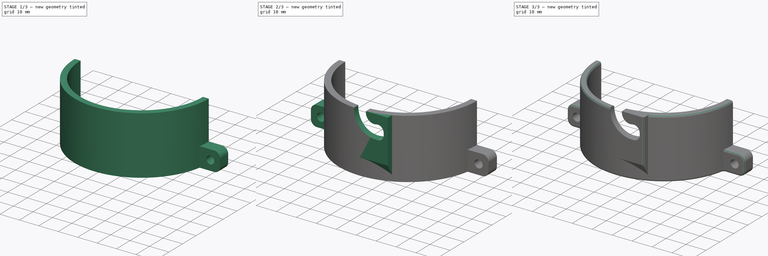
[diagram: build sequence overview — one tinted view per stage of 3, left to right]
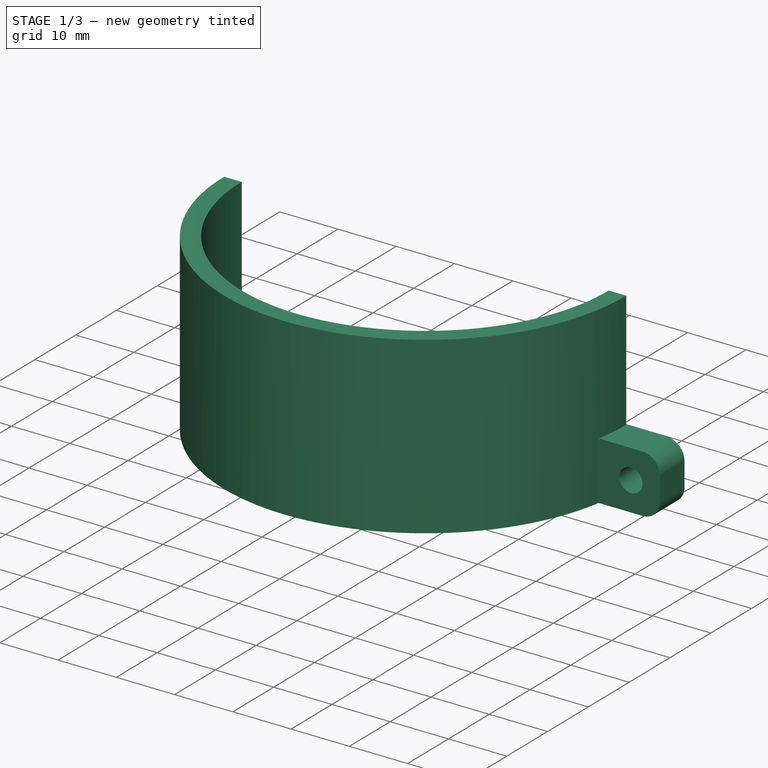
[diagram: stage 1 of 3 — iso view after this stage's code; geometry added in this stage tinted green]
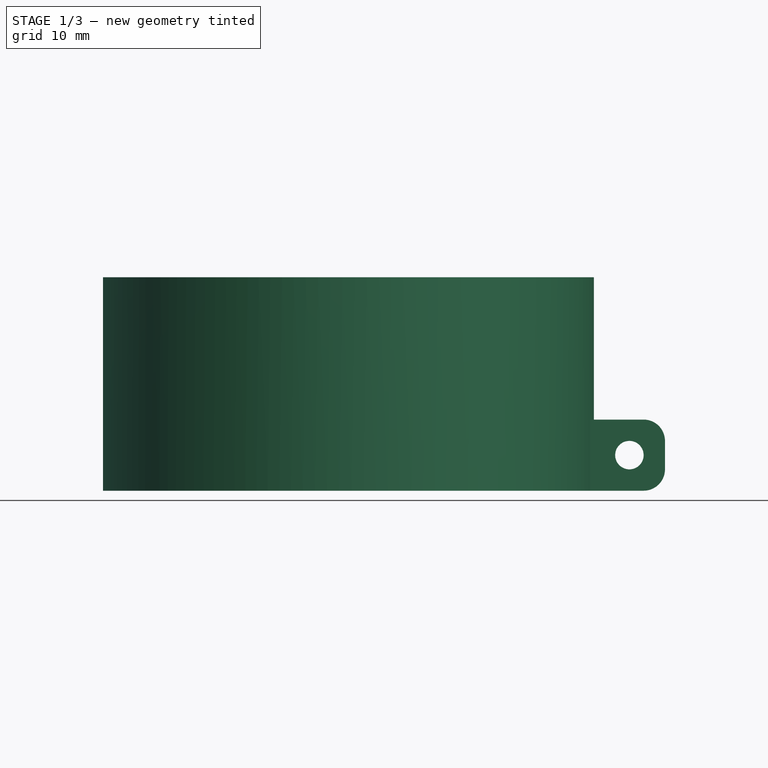
[diagram: stage 1 of 3 — front view after this stage's code; geometry added in this stage tinted green]
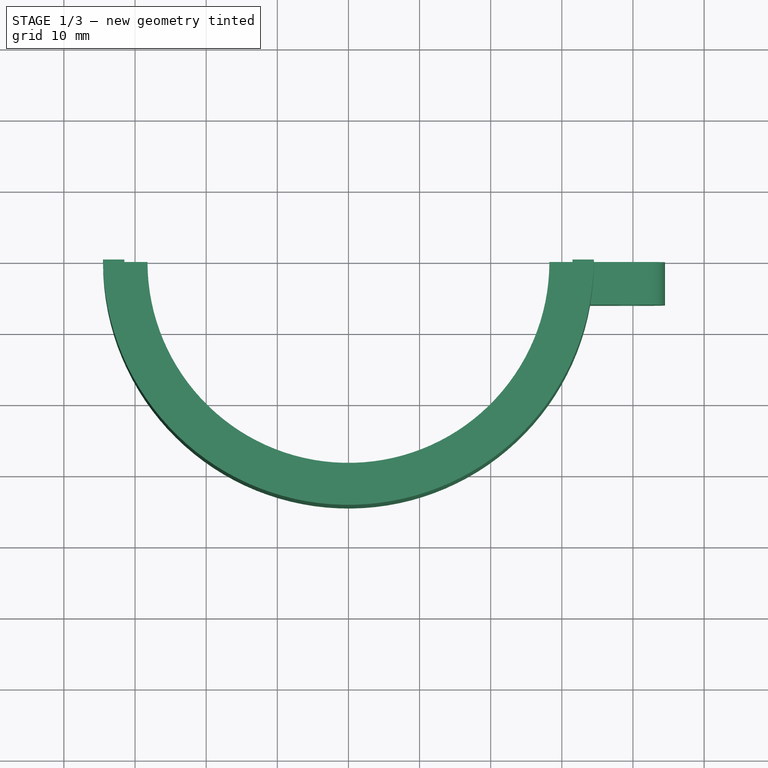
[diagram: stage 1 of 3 — top view after this stage's code; geometry added in this stage tinted green]
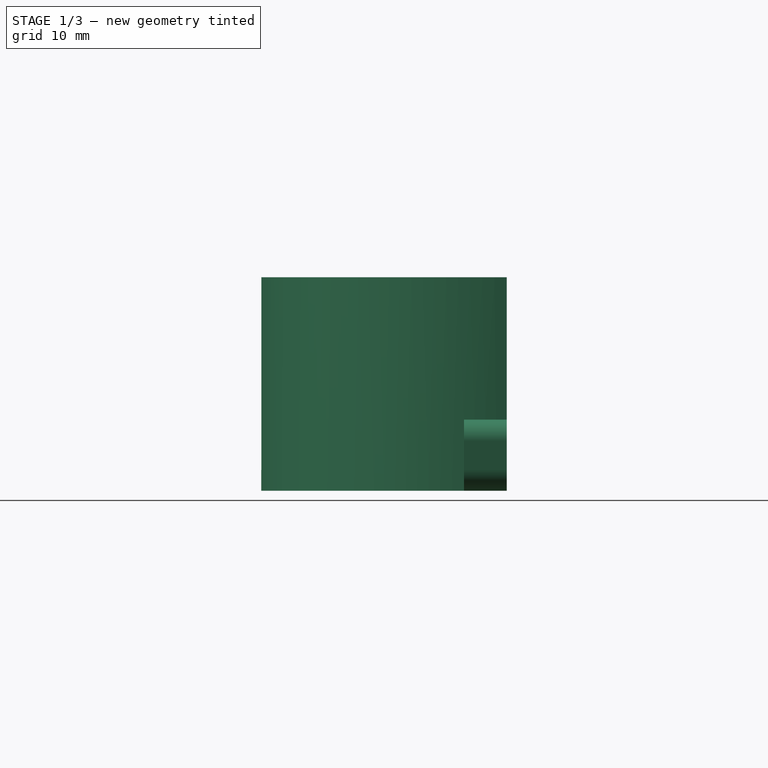
[diagram: stage 1 of 3 — right view after this stage's code; geometry added in this stage tinted green]
FCSTD DOCUMENT  (FreeCAD 0.20R27319 (Git))
Label: Hose Adapter
License: All rights reserved
LicenseURL: http://en.wikipedia.org/wiki/All_rights_reserved
objects: Sketcher::SketchObject×4, PartDesign::Pad×2, PartDesign::Fillet×2, PartDesign::Revolution×1, PartDesign::Mirrored×1, PartDesign::Pocket×1, PartDesign::Body×1
note: 18 computed .brp shape members not serialized (recipe doc carries the construction recipe); baked Part::Feature solids carry a one-line shape summary decoded from their .brp

FEATURE [Sketcher::SketchObject] Sketch
  FullyConstrained = true
  MapMode = 5
  Placement = pos=(0,0,0) rot=(1,0,0;1.5708rad)
  Support = -> [XZ_Plane]
  expr: Constraints[13] = 56.5 / 2
  expr: Constraints[14] = 63 / 2
  sketch-geometry (6):
    g0: LineSegment StartX=28.25 StartY=0 StartZ=0 EndX=28.25 EndY=10 EndZ=0
    g1: LineSegment StartX=28.25 StartY=10 StartZ=0 EndX=31.5 EndY=10 EndZ=0
    g2: LineSegment StartX=31.5 StartY=10 StartZ=0 EndX=31.5 EndY=30 EndZ=0
    g3: LineSegment StartX=31.5 StartY=30 StartZ=0 EndX=34.5 EndY=30 EndZ=0
    g4: LineSegment StartX=34.5 StartY=30 StartZ=0 EndX=34.5 EndY=0 EndZ=0
    g5: LineSegment StartX=34.5 StartY=0 StartZ=0 EndX=28.25 EndY=0 EndZ=0
  constraints (19):
    c: PointOnObject(g0,g-1)
    c: Vertical(g0)
    c: Coincident(g0,g1)
    c: Coincident(g1,g2)
    c: Vertical(g2)
    c: Coincident(g2,g3)
    c: Horizontal(g3)
    c: Coincident(g3,g4)
    c: Vertical(g4)
    c: Coincident(g4,g5)
    c: Coincident(g5,g0)
    c: Horizontal(g5)
    c: Horizontal(g1)
    c: DistanceX(g-1,g0) = 28.25
    c: DistanceX(g-1,g1) = 31.5
    c: DistanceY(g4,g4) = 30
    c: DistanceY(g0,g0) = 10
    c: DistanceX(g3,g3) = 3
    c: DistanceX(g1,g1) = 3.25
FEATURE [PartDesign::Revolution] Revolution
  Angle = 180
  Axis = (0,2e-16,1)
  Base = (0,0,0)
  Placement = pos=(0,0,0) rot=(1,0,0;1.5708rad)
  Profile = -> Sketch
  ReferenceAxis = -> Sketch [V_Axis]
  Reversed = true
FEATURE [Sketcher::SketchObject] Sketch001
  ExternalGeometry = -> [Sketch]
  FullyConstrained = false
  MapMode = 5
  Placement = pos=(0,0,0) rot=(1,0,0;1.5708rad)
  Support = -> [XZ_Plane]
  sketch-geometry (9):
    g0: LineSegment StartX=-3 StartY=42.4099 StartZ=0 EndX=-3 EndY=29.4253 EndZ=0
    g1: LineSegment StartX=7.92534 StartY=18.5 StartZ=0 EndX=8.92534 EndY=18.5 EndZ=0
    g2: LineSegment StartX=3 StartY=29.4253 StartZ=0 EndX=3 EndY=42.4099 EndZ=0
    g3: LineSegment StartX=3 StartY=42.4099 StartZ=0 EndX=-3 EndY=42.4099 EndZ=0
    g4: ArcOfCircle CenterX=7.92534 CenterY=29.4253 CenterZ=0 NormalX=0 NormalY=0 NormalZ=1 AngleXU=0 Radius=10.9253 StartAngle=3.14159 EndAngle=4.71239
    g5: ArcOfCircle CenterX=8.92534 CenterY=21.5 CenterZ=0 NormalX=0 NormalY=0 NormalZ=1 AngleXU=0 Radius=3 StartAngle=4.71239 EndAngle=6.28319
    g6: LineSegment StartX=11.9253 StartY=21.5 StartZ=0 EndX=11.9253 EndY=22.5 EndZ=0
    g7: ArcOfCircle CenterX=8.92534 CenterY=22.5 CenterZ=0 NormalX=0 NormalY=0 NormalZ=1 AngleXU=0 Radius=3 StartAngle=3e-16 EndAngle=1.82182
    g8: ArcOfCircle CenterX=7.14942 CenterY=29.4253 CenterZ=0 NormalX=0 NormalY=0 NormalZ=1 AngleXU=0 Radius=4.14942 StartAngle=3.14159 EndAngle=4.96342
  constraints (22):
    c: Vertical(g0)
    c: Horizontal(g1)
    c: Coincident(g2,g3)
    c: Coincident(g3,g0)
    c: Vertical(g2)
    c: Symmetric(g0,g2,g-2)
    c: Tangent(g0,g4) = -1.5708
    c: Tangent(g1,g4) = -1.5708
    c: DistanceX(g3,g3) = 6
    c: DistanceY(g-3,g1) = 8.5
    c: Tangent(g5,g1) = -1.5708
    c: Coincident(g6,g5)
    c: Vertical(g6)
    c: Tangent(g7,g6) = -1.5708
    c: Radius(g5) = 3
    c: DistanceY(g6,g6) = 1
    c: Vertical(g7,g5)
    c: Equal(g5,g7)
    c: Horizontal(g0,g2)
    c: Tangent(g8,g2) = 1.5708
    c: Tangent(g7,g8) = 1.5708
    c: DistanceX(g1,g1) = 1
FEATURE [Sketcher::SketchObject] Sketch002
  ExternalGeometry = -> [Sketch]
  FullyConstrained = true
  MapMode = 5
  Placement = pos=(0,0,0) rot=(1,0,0;1.5708rad)
  Support = -> [XZ_Plane]
  sketch-geometry (7):
    g0: LineSegment StartX=28.25 StartY=10 StartZ=0 EndX=41.5 EndY=10 EndZ=0
    g1: LineSegment StartX=44.5 StartY=7 StartZ=0 EndX=44.5 EndY=3 EndZ=0
    g2: LineSegment StartX=41.5 StartY=3.473e-13 StartZ=0 EndX=28.25 EndY=3.473e-13 EndZ=0
    g3: LineSegment StartX=28.25 StartY=3.473e-13 StartZ=0 EndX=28.25 EndY=10 EndZ=0
    g4: Circle CenterX=39.5 CenterY=5 CenterZ=0 NormalX=0 NormalY=0 NormalZ=1 AngleXU=0 Radius=2
    g5: ArcOfCircle CenterX=41.5 CenterY=7 CenterZ=0 NormalX=0 NormalY=0 NormalZ=1 AngleXU=0 Radius=3 StartAngle=0 EndAngle=1.5708
    g6: ArcOfCircle CenterX=41.5 CenterY=3 CenterZ=0 NormalX=0 NormalY=0 NormalZ=1 AngleXU=0 Radius=3 StartAngle=4.71239 EndAngle=6.28319
  constraints (17):
    c: Coincident(g2,g3)
    c: Coincident(g3,g0)
    c: Horizontal(g0)
    c: Horizontal(g2)
    c: Vertical(g1)
    c: Diameter(g4) = 4
    c: DistanceY(g2,g4) = 5
    c: Tangent(g0,g5) = 1.5708
    c: Tangent(g1,g5) = 1.5708
    c: Tangent(g1,g6) = 1.5708
    c: Tangent(g2,g6) = 1.5708
    c: Equal(g5,g6)
    c: Radius(g5) = 3
    c: Coincident(g0,g-3)
    c: Coincident(g2,g-3)
    c: DistanceX(g4,g1) = 5
    c: DistanceX(g-4,g4) = 5
FEATURE [PartDesign::Pad] Pad
  BaseFeature = -> Revolution
  Direction = (0,-1,2e-16)
  Length = 6
  Length2 = 10
  Placement = pos=(0,0,0) rot=(1,0,0;1.5708rad)
  Profile = -> Sketch002
  ReferenceAxis = -> Sketch002 [N_Axis]
  Type = 0
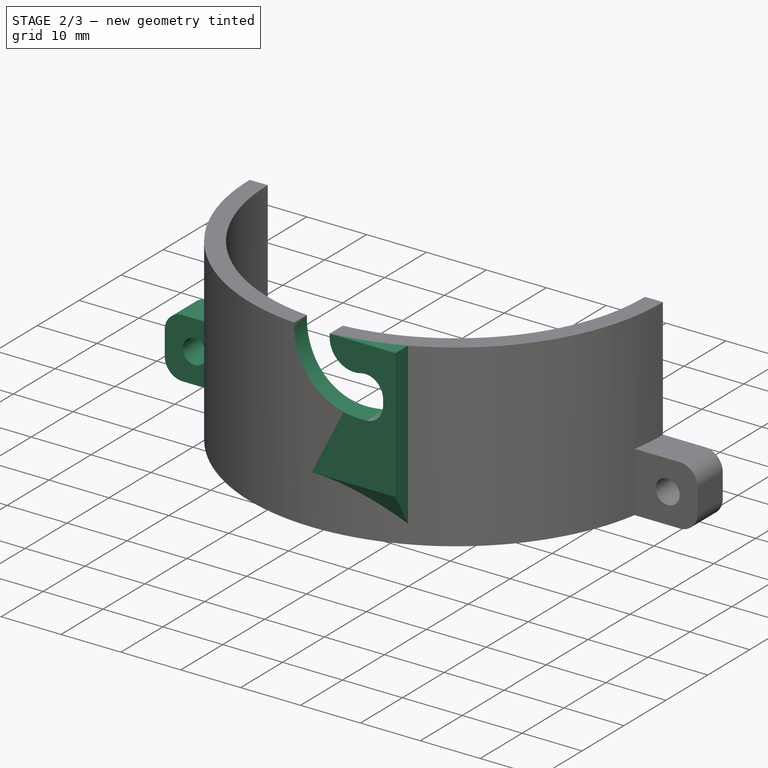
[diagram: stage 2 of 3 — iso view after this stage's code; geometry added in this stage tinted green]
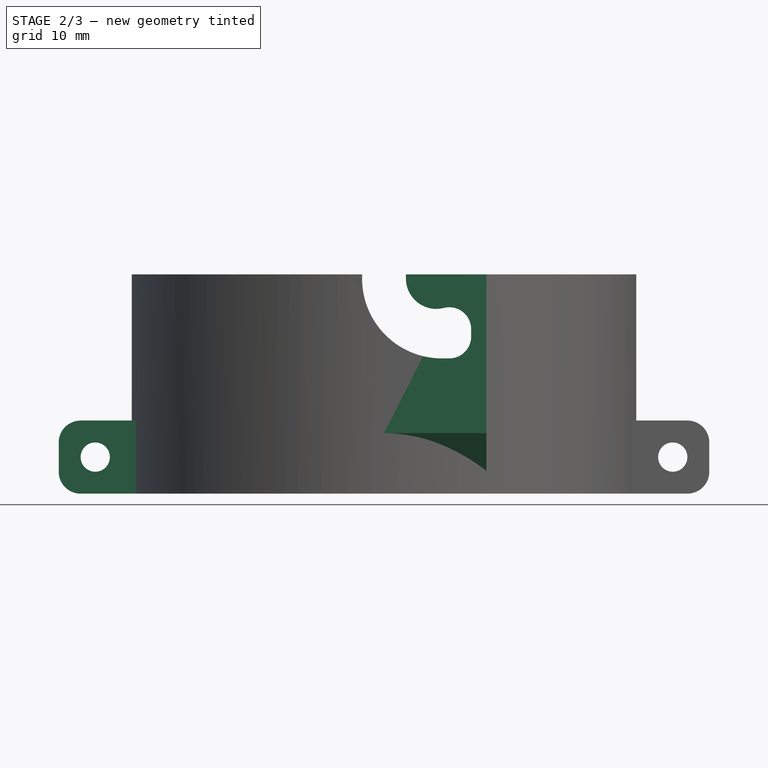
[diagram: stage 2 of 3 — front view after this stage's code; geometry added in this stage tinted green]
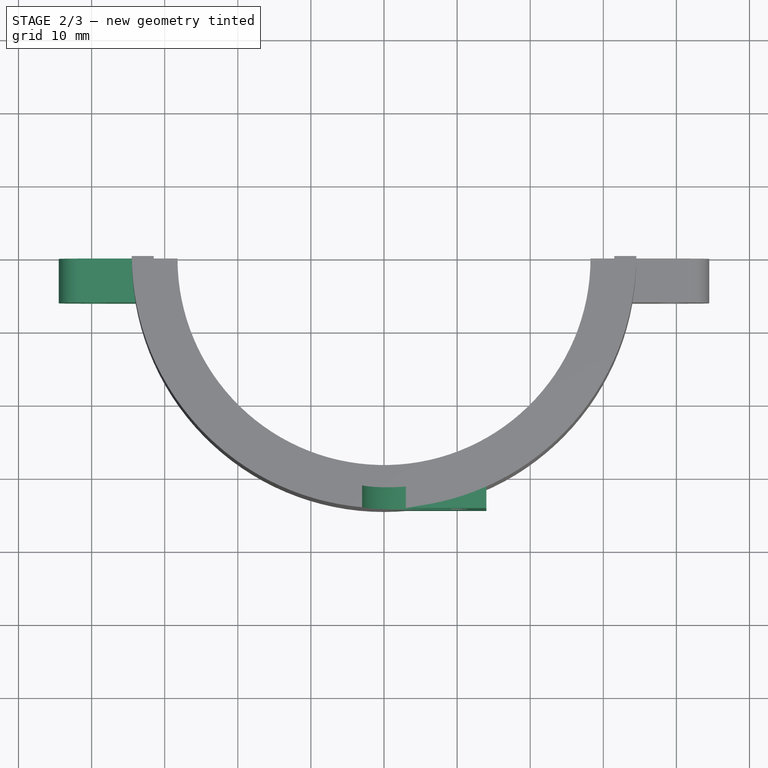
[diagram: stage 2 of 3 — top view after this stage's code; geometry added in this stage tinted green]
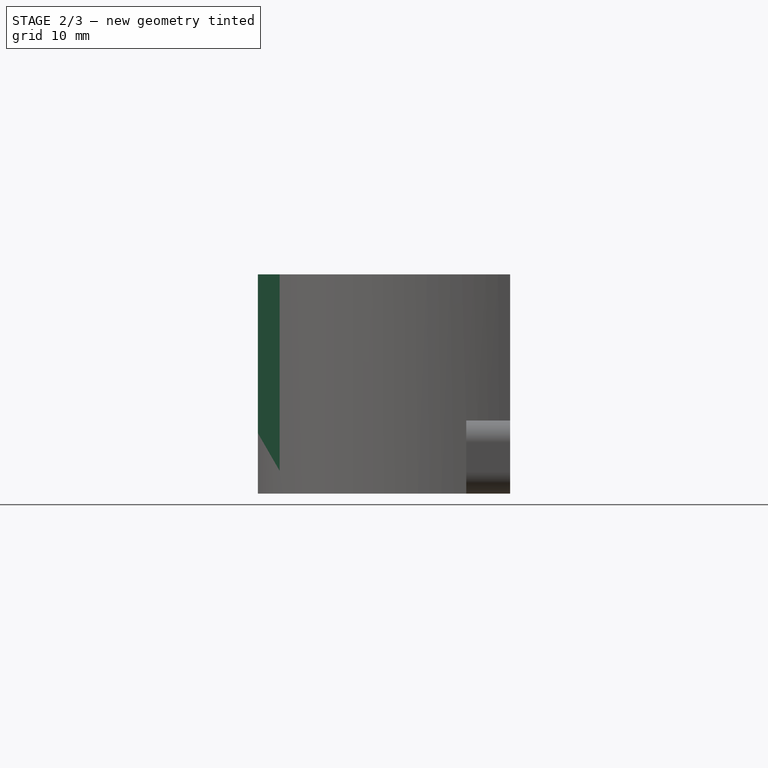
[diagram: stage 2 of 3 — right view after this stage's code; geometry added in this stage tinted green]
FEATURE [PartDesign::Mirrored] Mirrored
  BaseFeature = -> Pad
  MirrorPlane = -> Sketch002 [V_Axis]
  Originals = -> [Pad]
  Overlap = 0
  Placement = pos=(0,0,0) rot=(1,0,0;1.5708rad)
FEATURE [Sketcher::SketchObject] Sketch003
  ExternalGeometry = -> [Mirrored]
  FullyConstrained = false
  MapMode = 5
  Placement = pos=(0,0,0) rot=(0.57735,0.57735,0.57735;2.0944rad)
  Support = -> [YZ_Plane]
  sketch-geometry (4):
    g0: LineSegment StartX=-34.5 StartY=30 StartZ=0 EndX=-31.5 EndY=30 EndZ=0
    g1: LineSegment StartX=-31.5 StartY=30 StartZ=0 EndX=-31.5 EndY=3.07933 EndZ=0
    g2: LineSegment StartX=-31.5 StartY=3.07933 StartZ=0 EndX=-34.5 EndY=8.27548 EndZ=0
    g3: LineSegment StartX=-34.5 StartY=8.27548 StartZ=0 EndX=-34.5 EndY=30 EndZ=0
  constraints (9):
    c: Coincident(g1,g2)
    c: Coincident(g2,g3)
    c: Coincident(g3,g0)
    c: Vertical(g1)
    c: Vertical(g3)
    c: Angle(g1,g2) = 0.523599
    c: Coincident(g0,g1)
    c: Coincident(g-4,g0)
    c: Coincident(g0,g-3)
FEATURE [PartDesign::Pad] Pad001
  BaseFeature = -> Mirrored
  Direction = (1,-2e-16,3e-16)
  Length = 14
  Length2 = 10
  Placement = pos=(0,0,0) rot=(1,0,0;1.5708rad)
  Profile = -> Sketch003
  ReferenceAxis = -> Sketch003 [N_Axis]
  Type = 0
FEATURE [PartDesign::Pocket] Pocket
  BaseFeature = -> Pad001
  Direction = (0,1,-2e-16)
  Length = 5
  Length2 = 5
  Placement = pos=(0,0,0) rot=(1,0,0;1.5708rad)
  Profile = -> Sketch001
  ReferenceAxis = -> Sketch001 [N_Axis]
  Reversed = true
  Type = 1
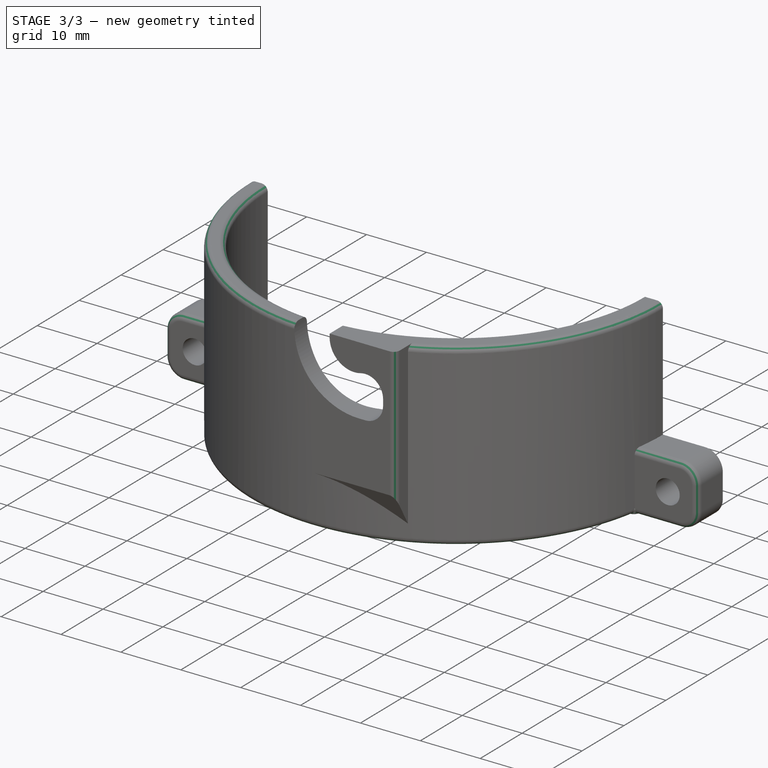
[diagram: stage 3 of 3 — iso view after this stage's code; geometry added in this stage tinted green]
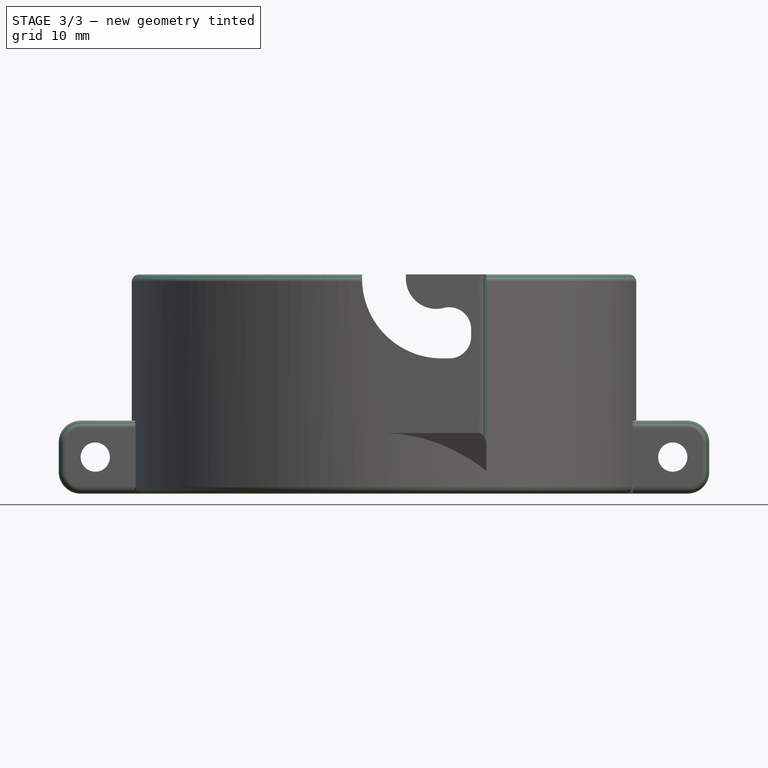
[diagram: stage 3 of 3 — front view after this stage's code; geometry added in this stage tinted green]
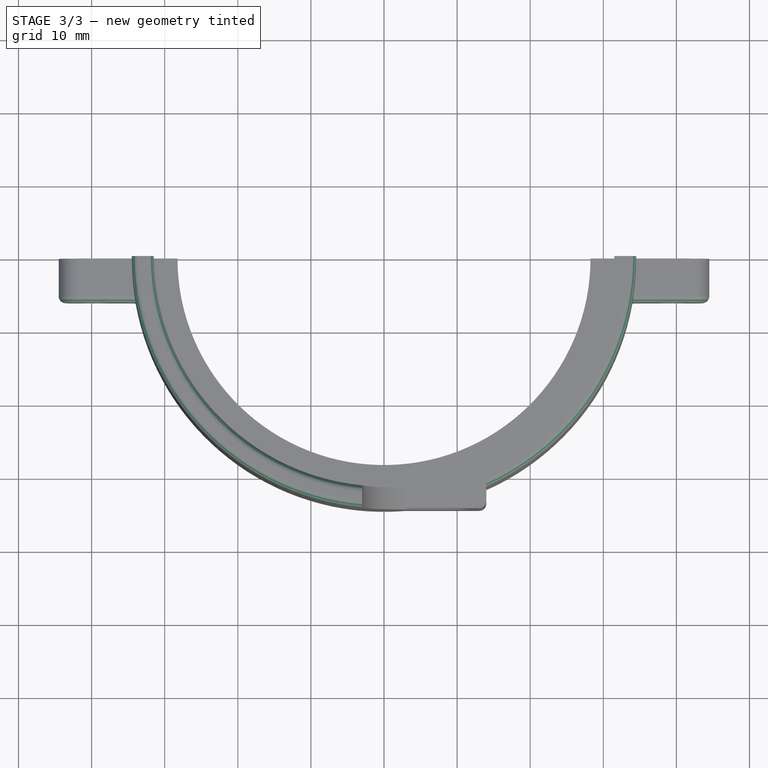
[diagram: stage 3 of 3 — top view after this stage's code; geometry added in this stage tinted green]
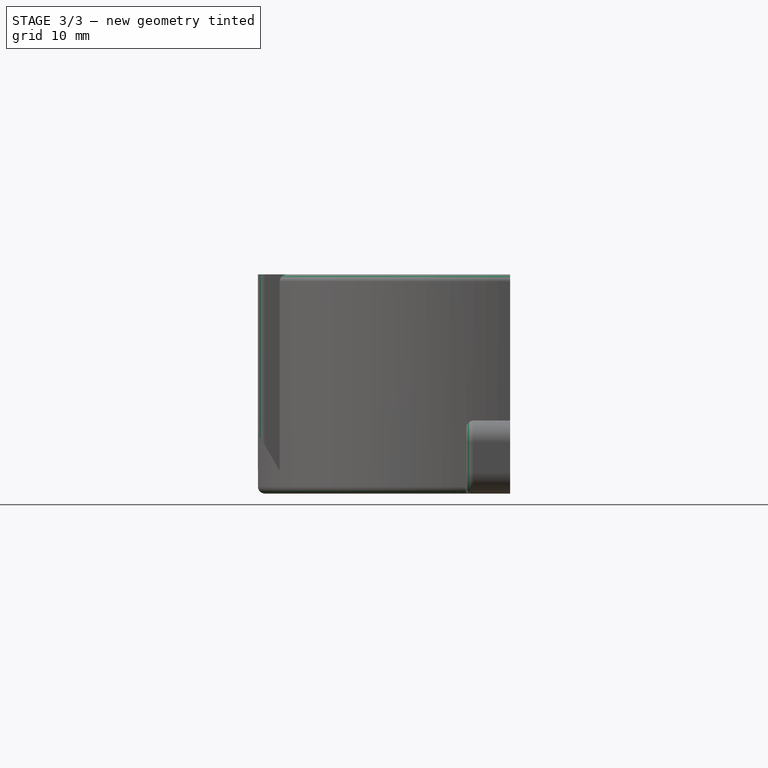
[diagram: stage 3 of 3 — right view after this stage's code; geometry added in this stage tinted green]
FEATURE [PartDesign::Fillet] Fillet
  Base = -> Pocket [Edge75,Edge79,Edge9,Edge32,Edge38,Edge96]
  BaseFeature = -> Pocket
  Placement = pos=(0,0,0) rot=(1,0,0;1.5708rad)
  Radius = 1
  SupportTransform = false
FEATURE [PartDesign::Fillet] Fillet001
  Base = -> Fillet [Edge5,Edge133]
  BaseFeature = -> Fillet
  Placement = pos=(0,0,0) rot=(1,0,0;1.5708rad)
  Radius = 1
  SupportTransform = false
FEATURE [PartDesign::Body] Body
  Group = -> [Sketch,Revolution,Sketch001,Sketch002,Pad,Mirrored,Sketch003,Pad001,Pocket,Fillet,Fillet001]
  Origin = -> Origin
  Tip = -> Fillet001
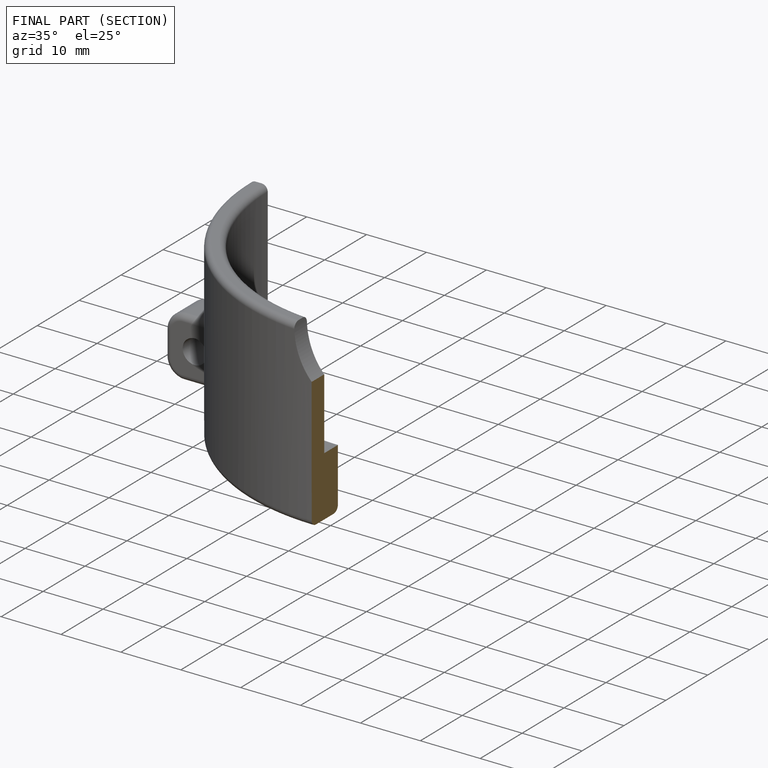
[diagram: finished part — half-section view (interior)]
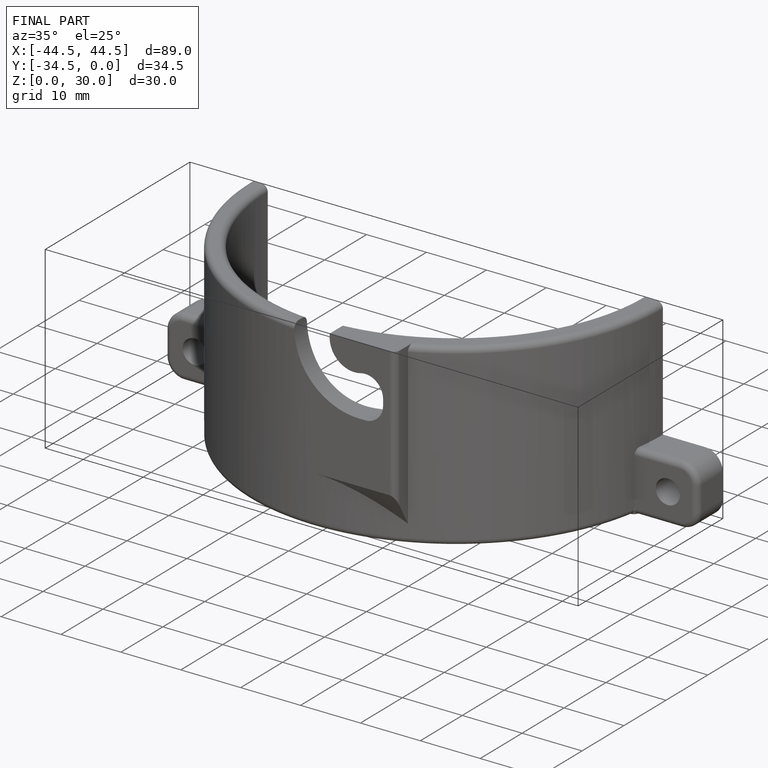
[diagram: finished part — iso view with bounding-box wireframe]
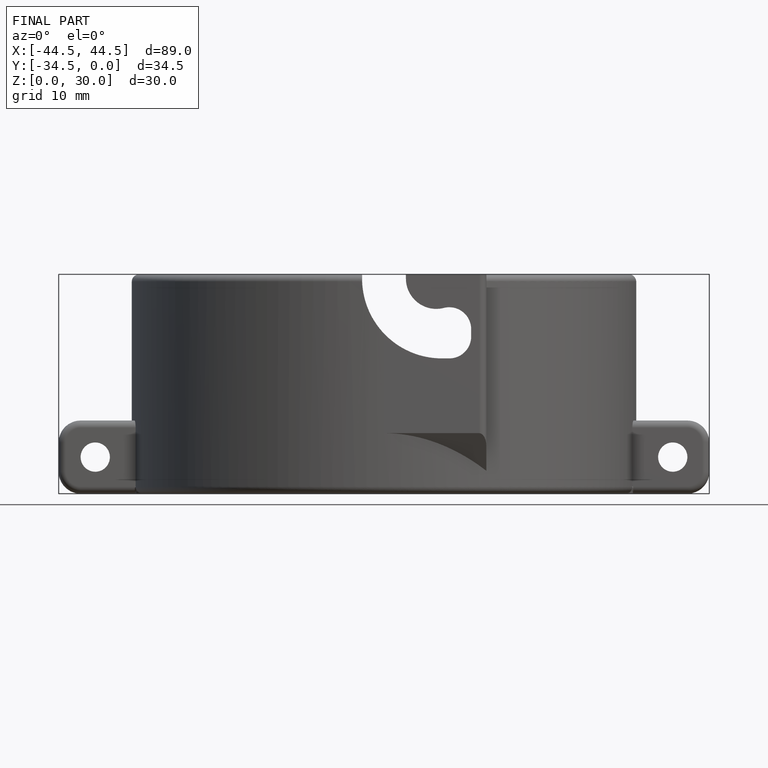
[diagram: finished part — front view with bounding-box wireframe]
